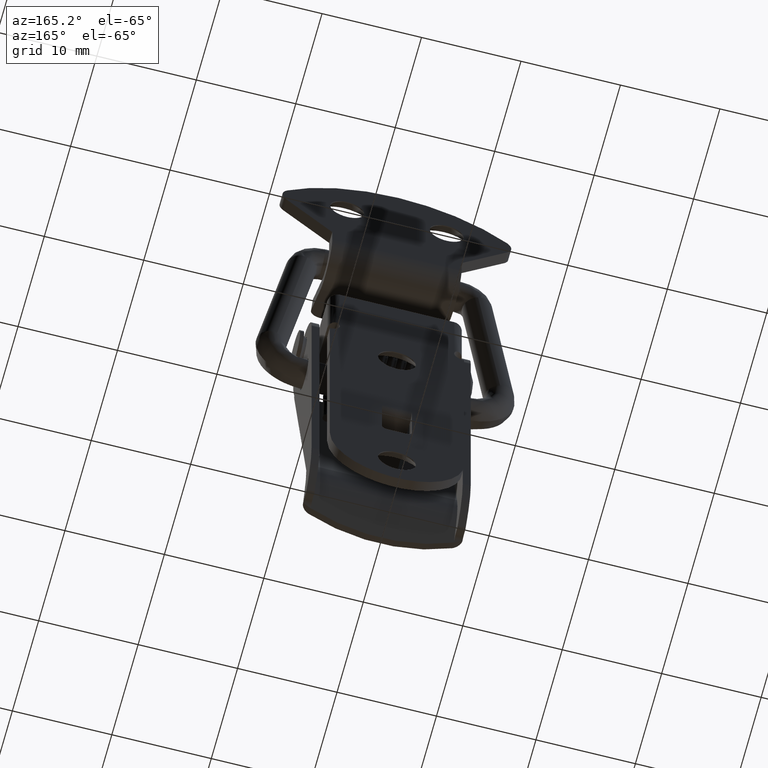
[diagram: clean part render]
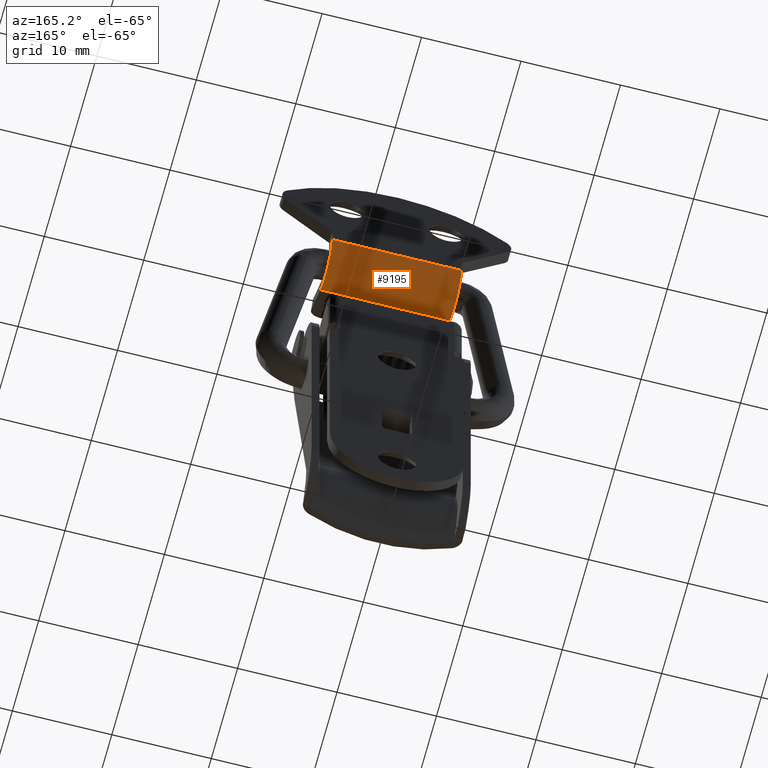
[diagram: same view with one face highlighted and labeled with its STEP entity id]
A machine part, auxiliary view. The second image highlights one B-rep face of the part: STEP entity #9195.
In plain terms, the highlighted face is a freeform B-spline surface patch.
Its self-contained STEP definition (entity closure, byte-faithful):
#8784=CARTESIAN_POINT('',(-1.704532001224340,6.499999999998489,-2.621389352815635));
#8785=VERTEX_POINT('',#8784);
#8830=CARTESIAN_POINT('',(2.800000000000000,6.499999999999780,-0.400000000000120));
#8831=VERTEX_POINT('',#8830);
#8837=CARTESIAN_POINT('',(2.800000000000000,6.499999999999780,-0.400000000000120));
#8838=CARTESIAN_POINT('',(2.799999999999999,6.499999999998762,-2.141151888191218));
#8839=CARTESIAN_POINT('',(1.238408332613246,6.499999999998335,-2.911243676291626));
#8840=CARTESIAN_POINT('',(-0.323183334773506,6.499999999997908,-3.681335464392033));
#8841=CARTESIAN_POINT('',(-1.704532001224340,6.499999999998495,-2.621389352815637));
#8849=(BOUNDED_CURVE()B_SPLINE_CURVE(2,(#8837,#8838,#8839,#8840,#8841),.UNSPECIFIED.,.F.,.U.)B_SPLINE_CURVE_WITH_KNOTS((3,2,3),(0.0,0.500000000000000,1.0),.UNSPECIFIED.)CURVE()GEOMETRIC_REPRESENTATION_ITEM()RATIONAL_B_SPLINE_CURVE((1.0,0.849202181526583,1.0,0.849202181526583,1.0))REPRESENTATION_ITEM(''));
#8850=EDGE_CURVE('',#8831,#8785,#8849,.T.);
#8932=CARTESIAN_POINT('',(-1.704532001224340,-6.500000000001520,-2.621389352815635));
#8933=VERTEX_POINT('',#8932);
#8939=CARTESIAN_POINT('',(2.800000000000000,-6.500000000000220,-0.400000000000120));
#8940=VERTEX_POINT('',#8939);
#8941=CARTESIAN_POINT('',(-1.704532001224341,-6.500000000001514,-2.621389352815637));
#8942=CARTESIAN_POINT('',(-0.323183334773507,-6.500000000002105,-3.681335464392034));
#8943=CARTESIAN_POINT('',(1.238408332613247,-6.500000000001675,-2.911243676291626));
#8944=CARTESIAN_POINT('',(2.800000000000000,-6.500000000001247,-2.141151888191217));
#8945=CARTESIAN_POINT('',(2.800000000000000,-6.500000000000220,-0.400000000000120));
#8953=(BOUNDED_CURVE()B_SPLINE_CURVE(2,(#8941,#8942,#8943,#8944,#8945),.UNSPECIFIED.,.F.,.U.)B_SPLINE_CURVE_WITH_KNOTS((3,2,3),(0.0,0.500000000000000,1.0),.UNSPECIFIED.)CURVE()GEOMETRIC_REPRESENTATION_ITEM()RATIONAL_B_SPLINE_CURVE((1.0,0.849202181526584,1.0,0.849202181526584,1.0))REPRESENTATION_ITEM(''));
#8954=EDGE_CURVE('',#8933,#8940,#8953,.T.);
#9167=CARTESIAN_POINT('',(2.799040509931559,6.824999999999821,-0.326704544738071));
#9168=CARTESIAN_POINT('',(2.799040509931559,-6.833125000001877,-0.326704544738071));
#9169=CARTESIAN_POINT('',(2.963664797810171,6.824999999999820,-6.613452461691965));
#9170=CARTESIAN_POINT('',(2.963664797810171,-6.833125000001875,-6.613452461691965));
#9171=CARTESIAN_POINT('',(-1.818454535324511,6.824999999999821,-2.529136703680208));
#9172=CARTESIAN_POINT('',(-1.818454535324511,-6.833125000001877,-2.529136703680208));
#9180=(BOUNDED_SURFACE()B_SPLINE_SURFACE(1,2,((#9167,#9169,#9171),(#9168,#9170,#9172)),.UNSPECIFIED.,.F.,.F.,.U.)B_SPLINE_SURFACE_WITH_KNOTS((2,2),(3,3),(0.0,13.658125000001700),(0.0,7.273365043812117),.UNSPECIFIED.)GEOMETRIC_REPRESENTATION_ITEM()RATIONAL_B_SPLINE_SURFACE(((1.0,0.406736643075800,1.0),(1.0,0.406736643075800,1.0)))REPRESENTATION_ITEM('')SURFACE());
#9181=ORIENTED_EDGE('',*,*,#8954,.F.);
#9182=CARTESIAN_POINT('',(-1.704532001224340,6.499999999998489,-2.621389352815635));
#9183=CARTESIAN_POINT('',(-1.704532001224340,-6.500000000001520,-2.621389352815635));
#9184=QUASI_UNIFORM_CURVE('',1,(#9182,#9183),.UNSPECIFIED.,.F.,.U.);
#9185=EDGE_CURVE('',#8785,#8933,#9184,.T.);
#9186=ORIENTED_EDGE('',*,*,#9185,.F.);
#9187=ORIENTED_EDGE('',*,*,#8850,.F.);
#9188=CARTESIAN_POINT('',(2.800000000000000,6.499999999999780,-0.400000000000120));
#9189=CARTESIAN_POINT('',(2.800000000000000,-6.500000000000220,-0.400000000000120));
#9190=QUASI_UNIFORM_CURVE('',1,(#9188,#9189),.UNSPECIFIED.,.F.,.U.);
#9191=EDGE_CURVE('',#8831,#8940,#9190,.T.);
#9192=ORIENTED_EDGE('',*,*,#9191,.T.);
#9193=EDGE_LOOP('',(#9181,#9186,#9187,#9192));
#9194=FACE_OUTER_BOUND('',#9193,.T.);
#9195=ADVANCED_FACE('',(#9194),#9180,.T.);